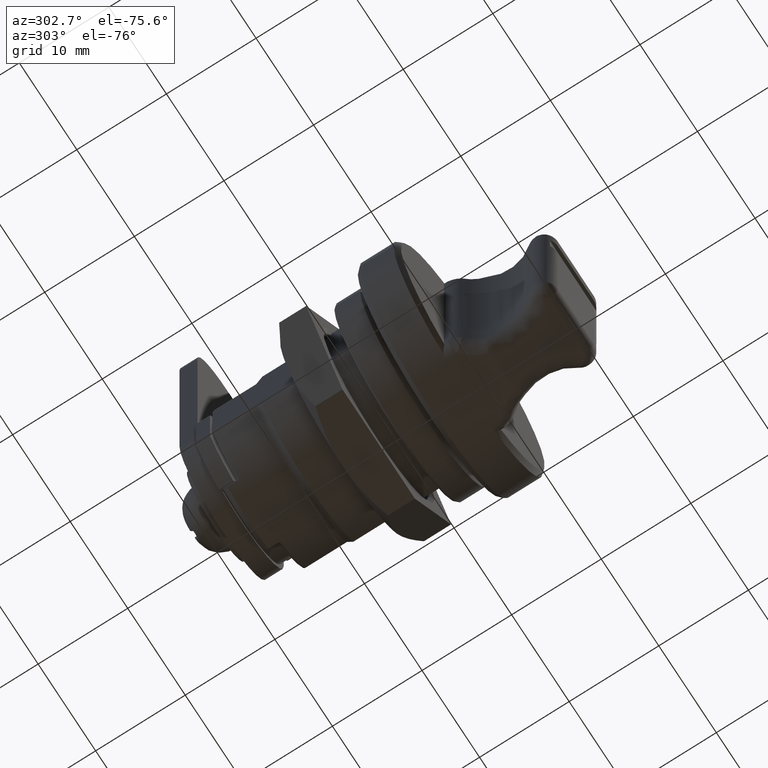
[diagram: clean part render]
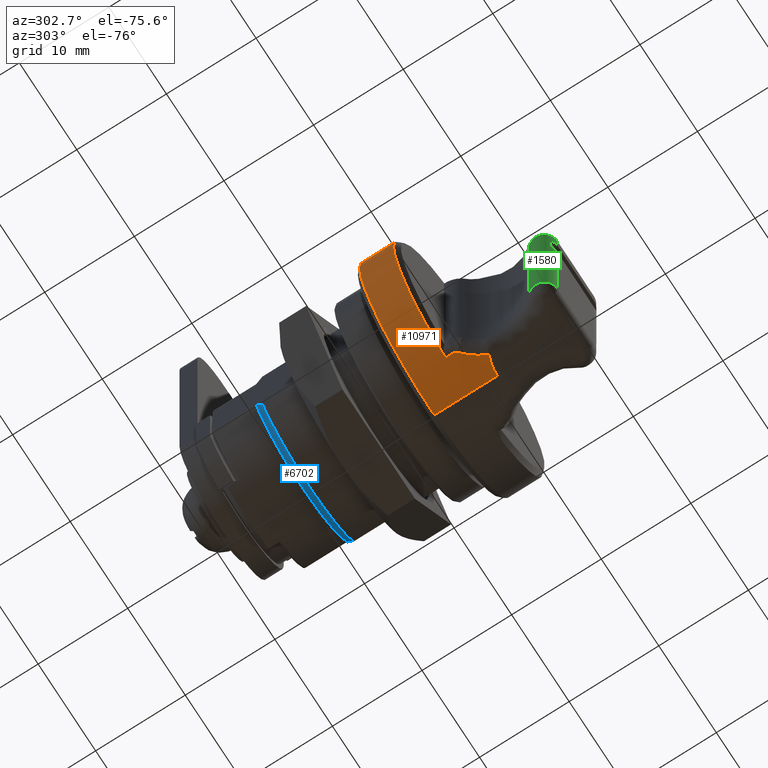
[diagram: same view with three faces highlighted in distinct colors, each labeled with its STEP entity id]
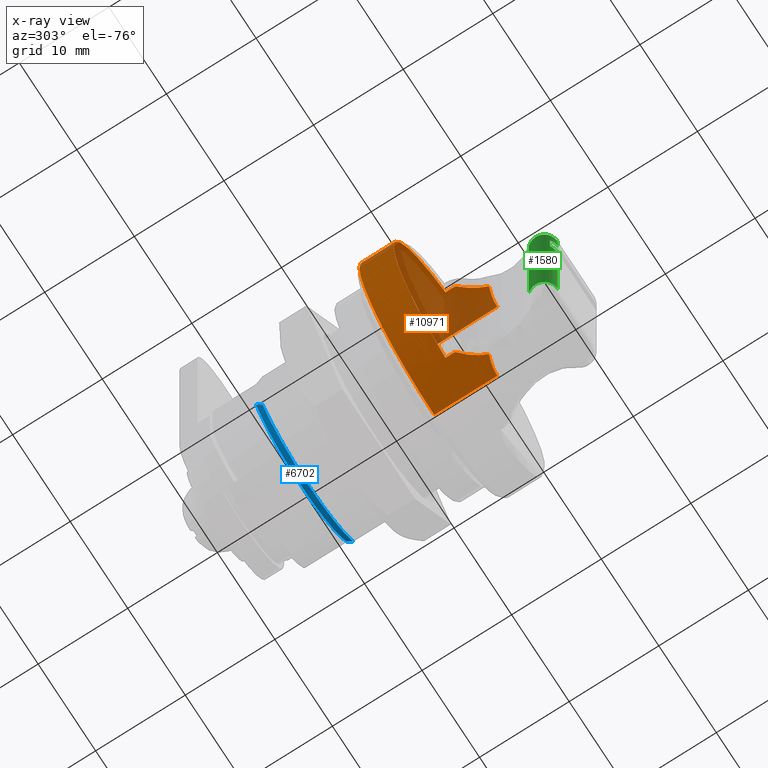
[diagram: x-ray of the same camera — body ghosted, the three highlighted faces saturated]
A machine part, auxiliary view with three faces highlighted in distinct colors.
The next image is the same camera in x-ray (body ghosted, the three faces saturated) — at least one of them is partly hidden behind the body in this view.
Their STEP definitions:

[orange] entity #10971 — the highlighted cylindrical surface (partial cylindrical patch) has radius 13 mm, axis along (0, 1, 0).
#143 = B_SPLINE_CURVE_WITH_KNOTS ( 'NONE', 3,
 ( #10987, #10151, #4213, #10186 ),
 .UNSPECIFIED., .F., .F.,
 ( 4, 4 ),
 ( 0.0000000000000000000, 1.000000000000000000 ),
 .UNSPECIFIED. ) ;
#207 = VECTOR ( 'NONE', #10780, 1000.000000000000000 ) ;
#213 = CARTESIAN_POINT ( 'NONE',  ( -8.900980486429979500, 3.956521738771737500, -12.38329260459761200 ) ) ;
#260 = ORIENTED_EDGE ( 'NONE', *, *, #10776, .T. ) ;
#346 = CARTESIAN_POINT ( 'NONE',  ( -11.39121744250004700, 1.431505148513785500, -12.94088895206948700 ) ) ;
#471 = CARTESIAN_POINT ( 'NONE',  ( 980.0000000000000000, 0.0000000000000000000, 0.0000000000000000000 ) ) ;
#501 = ORIENTED_EDGE ( 'NONE', *, *, #8183, .F. ) ;
#513 = AXIS2_PLACEMENT_3D ( 'NONE', #6466, #1382, #7341 ) ;
#641 = DIRECTION ( 'NONE',  ( 1.000000000000000000, 6.672013369132493600E-017, 6.672013369132491100E-017 ) ) ;
#661 = CARTESIAN_POINT ( 'NONE',  ( -9.240915120670015500, 3.805797101448043000, -12.43044280879360700 ) ) ;
#840 = EDGE_CURVE ( 'NONE', #5377, #5966, #6738, .T. ) ;
#854 = CARTESIAN_POINT ( 'NONE',  ( -9.871924879001865000, 3.216587939261052600, 12.59604679159770900 ) ) ;
#954 = ORIENTED_EDGE ( 'NONE', *, *, #5828, .T. ) ;
#1027 = CARTESIAN_POINT ( 'NONE',  ( -9.142548642630000400, 3.891186871440000000, 12.40400752689999900 ) ) ;
#1073 = CARTESIAN_POINT ( 'NONE',  ( -9.195828779190000200, 3.853048437650000000, -12.41597598720000000 ) ) ;
#1106 = FACE_OUTER_BOUND ( 'NONE', #7620, .T. ) ;
#1131 = ORIENTED_EDGE ( 'NONE', *, *, #3496, .F. ) ;
#1199 = LINE ( 'NONE', #7101, #9999 ) ;
#1382 = DIRECTION ( 'NONE',  ( 1.000000000000000000, -0.0000000000000000000, -0.0000000000000000000 ) ) ;
#1521 = CARTESIAN_POINT ( 'NONE',  ( -4.199999999982324500, -3.326764314864607900E-015, 2.061392367156021700E-015 ) ) ;
#1524 = LINE ( 'NONE', #7718, #10323 ) ;
#1725 = CARTESIAN_POINT ( 'NONE',  ( -10.16303911216829200, 2.989943967266768700, 12.65154595114839300 ) ) ;
#1900 = CARTESIAN_POINT ( 'NONE',  ( -8.963741932390000500, 3.956521688289999600, 12.38329262070000100 ) ) ;
#1940 = ORIENTED_EDGE ( 'NONE', *, *, #2176, .F. ) ;
#2055 = CARTESIAN_POINT ( 'NONE',  ( -11.24306071587143700, -4.897711414305082900E-007, 12.99989996156368800 ) ) ;
#2149 = CARTESIAN_POINT ( 'NONE',  ( -4.199999999982322800, 13.00000000001767800, 6.235173841678565100E-015 ) ) ;
#2167 = VERTEX_POINT ( 'NONE', #9130 ) ;
#2176 = EDGE_CURVE ( 'NONE', #7080, #5893, #6099, .T. ) ;
#2316 = AXIS2_PLACEMENT_3D ( 'NONE', #1521, #7475, #2395 ) ;
#2395 = DIRECTION ( 'NONE',  ( -6.672013369132249500E-017, 1.000000000000000000, 0.0000000000000000000 ) ) ;
#2547 = CARTESIAN_POINT ( 'NONE',  ( -11.68753051610001300, 2.139909973500710100, 12.82266685620425200 ) ) ;
#2567 = CARTESIAN_POINT ( 'NONE',  ( -10.31145743480494800, 2.883001108109514400, 12.67634224203613200 ) ) ;
#2622 = EDGE_CURVE ( 'NONE', #8223, #6995, #8588, .T. ) ;
#2698 = CARTESIAN_POINT ( 'NONE',  ( -9.195165783520000200, 3.853743312419999800, 12.41576323920000000 ) ) ;
#2723 = AXIS2_PLACEMENT_3D ( 'NONE', #5742, #641, #6611 ) ;
#3218 = CARTESIAN_POINT ( 'NONE',  ( -11.23089761100884900, 2.335817204696849700, -12.78898611520596700 ) ) ;
#3226 = CIRCLE ( 'NONE', #513, 13.00000000000000200 ) ;
#3260 = ORIENTED_EDGE ( 'NONE', *, *, #10849, .F. ) ;
#3429 = CARTESIAN_POINT ( 'NONE',  ( -11.22190051659688200, 2.324138971568306700, 12.79192181114168400 ) ) ;
#3468 = DIRECTION ( 'NONE',  ( 1.000000000000000000, -0.0000000000000000000, -0.0000000000000000000 ) ) ;
#3496 = EDGE_CURVE ( 'NONE', #5966, #6211, #10228, .T. ) ;
#3554 = ORIENTED_EDGE ( 'NONE', *, *, #5196, .T. ) ;
#3580 = AXIS2_PLACEMENT_3D ( 'NONE', #471, #4670, #4734 ) ;
#3650 = VERTEX_POINT ( 'NONE', #2055 ) ;
#3926 = VERTEX_POINT ( 'NONE', #7405 ) ;
#4043 = CARTESIAN_POINT ( 'NONE',  ( -10.79371832219517400, 2.573094227232843400, -12.74298115558164200 ) ) ;
#4213 = CARTESIAN_POINT ( 'NONE',  ( -11.24306085685711300, 0.7149269770521382600, 13.00000001947431000 ) ) ;
#4309 = ORIENTED_EDGE ( 'NONE', *, *, #9568, .F. ) ;
#4441 = CARTESIAN_POINT ( 'NONE',  ( -9.026436794820000400, 3.942984058630000500, -12.38763969070000200 ) ) ;
#4602 = B_SPLINE_CURVE_WITH_KNOTS ( 'NONE', 3,
 ( #8674, #2698, #1027, #6990, #1900, #7845 ),
 .UNSPECIFIED., .F., .F.,
 ( 4, 2, 4 ),
 ( 0.0000000000000000000, 0.5000000000013351500, 1.000000000000000000 ),
 .UNSPECIFIED. ) ;
#4622 = CIRCLE ( 'NONE', #2723, 13.00000000001815300 ) ;
#4670 = DIRECTION ( 'NONE',  ( 1.000000000000000000, -0.0000000000000000000, -0.0000000000000000000 ) ) ;
#4734 = DIRECTION ( 'NONE',  ( 0.0000000000000000000, 0.0000000000000000000, -1.000000000000000000 ) ) ;
#4847 = CARTESIAN_POINT ( 'NONE',  ( 980.0000000000000000, 1.592040838891559300E-015, 13.00000000000000200 ) ) ;
#4868 = CARTESIAN_POINT ( 'NONE',  ( -11.45622119951172400, 2.231428740947476000, -12.80739375230461300 ) ) ;
#4907 = CARTESIAN_POINT ( 'NONE',  ( -10.47377138628497100, 2.771667433158804700, -12.70129979317985700 ) ) ;
#5014 = CARTESIAN_POINT ( 'NONE',  ( -9.240915120670015500, 3.805797101448043000, 12.43044280879360700 ) ) ;
#5191 = VERTEX_POINT ( 'NONE', #8170 ) ;
#5196 = EDGE_CURVE ( 'NONE', #5377, #5191, #3226, .T. ) ;
#5315 = CARTESIAN_POINT ( 'NONE',  ( -8.964857171970001200, 3.956521725950000100, -12.38329260870000100 ) ) ;
#5377 = VERTEX_POINT ( 'NONE', #6596 ) ;
#5742 = CARTESIAN_POINT ( 'NONE',  ( -4.199999999982324500, -3.326764314864607900E-015, 2.061392367156021700E-015 ) ) ;
#5758 = CARTESIAN_POINT ( 'NONE',  ( -9.585568478527022800, 3.444593551051505600, -12.54103158235845000 ) ) ;
#5828 = EDGE_CURVE ( 'NONE', #9289, #2167, #8547, .T. ) ;
#5893 = VERTEX_POINT ( 'NONE', #2149 ) ;
#5944 = CARTESIAN_POINT ( 'NONE',  ( -9.591257991198160600, 3.456463791289386300, 12.53316356902676900 ) ) ;
#5966 = VERTEX_POINT ( 'NONE', #8210 ) ;
#6099 = CIRCLE ( 'NONE', #2316, 13.00000000001815300 ) ;
#6154 = CARTESIAN_POINT ( 'NONE',  ( -9.142716792210000800, 3.891092814680000300, -12.40403712920000100 ) ) ;
#6211 = VERTEX_POINT ( 'NONE', #6822 ) ;
#6288 = CARTESIAN_POINT ( 'NONE',  ( -11.68753051610001300, 2.139909973500710100, -12.82266685620425200 ) ) ;
#6361 = CYLINDRICAL_SURFACE ( 'NONE', #3580, 13.00000000000000200 ) ;
#6466 = CARTESIAN_POINT ( 'NONE',  ( -8.000000000000007100, 0.0000000000000000000, 0.0000000000000000000 ) ) ;
#6574 = EDGE_CURVE ( 'NONE', #6995, #3650, #143, .T. ) ;
#6596 = CARTESIAN_POINT ( 'NONE',  ( -8.000000000003574000, 3.956521737881256900, -12.38329260485784500 ) ) ;
#6604 = VERTEX_POINT ( 'NONE', #8636 ) ;
#6611 = DIRECTION ( 'NONE',  ( -6.672013369132249500E-017, 1.000000000000000000, 0.0000000000000000000 ) ) ;
#6626 = B_SPLINE_CURVE_WITH_KNOTS ( 'NONE', 3,
 ( #10858, #4868, #3218, #9187, #4043, #10028, #4907, #10896, #5758, #661 ),
 .UNSPECIFIED., .F., .F.,
 ( 4, 2, 2, 2, 4 ),
 ( 0.0000000000000000000, 0.2500000000000011700, 0.3750000000000009400, 0.5000000000000007800, 1.000000000000000000 ),
 .UNSPECIFIED. ) ;
#6638 = VECTOR ( 'NONE', #9167, 1000.000000000000000 ) ;
#6738 = LINE ( 'NONE', #9144, #207 ) ;
#6810 = CARTESIAN_POINT ( 'NONE',  ( -10.01524327872168200, 3.100397875225240400, 12.62528471764468700 ) ) ;
#6822 = CARTESIAN_POINT ( 'NONE',  ( -9.240915120670015500, 3.805797101448043000, -12.43044280879360700 ) ) ;
#6990 = CARTESIAN_POINT ( 'NONE',  ( -9.026372067740000600, 3.942993887530000600, 12.38763646530000000 ) ) ;
#6995 = VERTEX_POINT ( 'NONE', #2547 ) ;
#7034 = CARTESIAN_POINT ( 'NONE',  ( -9.240915120670015500, 3.805797101448043000, -12.43044280879360700 ) ) ;
#7080 = VERTEX_POINT ( 'NONE', #7766 ) ;
#7101 = CARTESIAN_POINT ( 'NONE',  ( 980.0000000000000000, 3.956521739118074300, 12.38329260446267600 ) ) ;
#7341 = DIRECTION ( 'NONE',  ( 0.0000000000000000000, 0.0000000000000000000, -1.000000000000000000 ) ) ;
#7356 = ORIENTED_EDGE ( 'NONE', *, *, #840, .F. ) ;
#7405 = CARTESIAN_POINT ( 'NONE',  ( -8.900980486429979500, 3.956521739125113500, 12.38329260448470700 ) ) ;
#7475 = DIRECTION ( 'NONE',  ( 1.000000000000000000, 6.672013369132493600E-017, 6.672013369132491100E-017 ) ) ;
#7620 = EDGE_LOOP ( 'NONE', ( #9794, #10261, #9364, #1940, #3260, #954, #260, #1131, #7356, #3554, #4309, #501, #9309 ) ) ;
#7682 = CARTESIAN_POINT ( 'NONE',  ( -10.26256465307209000, 2.917593597108869100, 12.66842640123561600 ) ) ;
#7718 = CARTESIAN_POINT ( 'NONE',  ( 980.0000000000000000, 0.0000000000000000000, -13.00000000000000200 ) ) ;
#7745 = EDGE_CURVE ( 'NONE', #3650, #6604, #8910, .T. ) ;
#7766 = CARTESIAN_POINT ( 'NONE',  ( -4.199999999982323700, 4.645343025862012900E-027, -13.00000000001815100 ) ) ;
#7769 = EDGE_CURVE ( 'NONE', #5893, #6604, #4622, .T. ) ;
#7845 = CARTESIAN_POINT ( 'NONE',  ( -8.900980486429979500, 3.956521739125113500, 12.38329260448470700 ) ) ;
#7993 = CARTESIAN_POINT ( 'NONE',  ( -11.24306071590350500, 2.713176968852840300E-007, -12.99989996169141900 ) ) ;
#8170 = CARTESIAN_POINT ( 'NONE',  ( -8.000000000026071600, 3.956521738413047100, 12.38329260469088500 ) ) ;
#8183 = EDGE_CURVE ( 'NONE', #8223, #3926, #4602, .T. ) ;
#8210 = CARTESIAN_POINT ( 'NONE',  ( -8.900980486429979500, 3.956521738771737500, -12.38329260459761200 ) ) ;
#8223 = VERTEX_POINT ( 'NONE', #5014 ) ;
#8541 = CARTESIAN_POINT ( 'NONE',  ( -10.78058456852518900, 2.560584244993503700, 12.74871295567005800 ) ) ;
#8547 = B_SPLINE_CURVE_WITH_KNOTS ( 'NONE', 3,
 ( #7993, #9705, #346, #6288 ),
 .UNSPECIFIED., .F., .F.,
 ( 4, 4 ),
 ( 0.0000000000000000000, 1.000000000000000000 ),
 .UNSPECIFIED. ) ;
#8588 = B_SPLINE_CURVE_WITH_KNOTS ( 'NONE', 3,
 ( #9262, #9377, #5944, #854, #6810, #1725, #7682, #2567, #8541, #3429, #9405 ),
 .UNSPECIFIED., .F., .F.,
 ( 4, 2, 1, 2, 2, 4 ),
 ( 0.0000000000000000000, 0.2499999999999998300, 0.3749999999999992800, 0.4374999999999988300, 0.4999999999999983900, 1.000000000000000000 ),
 .UNSPECIFIED. ) ;
#8636 = CARTESIAN_POINT ( 'NONE',  ( -4.199999999982325400, 1.592040838898428100E-015, 13.00000000001815400 ) ) ;
#8674 = CARTESIAN_POINT ( 'NONE',  ( -9.240915120670015500, 3.805797101448043000, 12.43044280879360700 ) ) ;
#8910 = LINE ( 'NONE', #4847, #6638 ) ;
#9130 = CARTESIAN_POINT ( 'NONE',  ( -11.68753051610001300, 2.139909973500710100, -12.82266685620425200 ) ) ;
#9144 = CARTESIAN_POINT ( 'NONE',  ( 980.0000000000000000, 3.956521737704568500, -12.38329260491429700 ) ) ;
#9167 = DIRECTION ( 'NONE',  ( 1.000000000000000000, -0.0000000000000000000, -0.0000000000000000000 ) ) ;
#9187 = CARTESIAN_POINT ( 'NONE',  ( -10.90189082038254900, 2.511400857461213200, -12.75525059339546500 ) ) ;
#9262 = CARTESIAN_POINT ( 'NONE',  ( -9.240915120670015500, 3.805797101448043000, 12.43044280879360700 ) ) ;
#9289 = VERTEX_POINT ( 'NONE', #10466 ) ;
#9309 = ORIENTED_EDGE ( 'NONE', *, *, #2622, .T. ) ;
#9364 = ORIENTED_EDGE ( 'NONE', *, *, #7769, .F. ) ;
#9377 = CARTESIAN_POINT ( 'NONE',  ( -9.412106614843486000, 3.626385022359469800, 12.48537294933835700 ) ) ;
#9405 = CARTESIAN_POINT ( 'NONE',  ( -11.68753051610001300, 2.139909973500710100, 12.82266685620425200 ) ) ;
#9568 = EDGE_CURVE ( 'NONE', #3926, #5191, #1199, .T. ) ;
#9684 = DIRECTION ( 'NONE',  ( 1.000000000000000000, -0.0000000000000000000, -0.0000000000000000000 ) ) ;
#9705 = CARTESIAN_POINT ( 'NONE',  ( -11.24306090570004100, 0.7149272133909578800, -13.00000000000000200 ) ) ;
#9794 = ORIENTED_EDGE ( 'NONE', *, *, #6574, .T. ) ;
#9999 = VECTOR ( 'NONE', #9684, 1000.000000000000000 ) ;
#10028 = CARTESIAN_POINT ( 'NONE',  ( -10.58036618986307300, 2.702742640742442400, -12.71611437710594000 ) ) ;
#10151 = CARTESIAN_POINT ( 'NONE',  ( -11.39121739365711500, 1.431505031826842300, 12.94088897154277800 ) ) ;
#10186 = CARTESIAN_POINT ( 'NONE',  ( -11.24306071587143700, -4.897711414305082900E-007, 12.99989996156368800 ) ) ;
#10228 = B_SPLINE_CURVE_WITH_KNOTS ( 'NONE', 3,
 ( #213, #5315, #4441, #6154, #1073, #7034 ),
 .UNSPECIFIED., .F., .F.,
 ( 4, 2, 4 ),
 ( 0.0000000000000000000, 0.5000000000005526700, 1.000000000000000000 ),
 .UNSPECIFIED. ) ;
#10261 = ORIENTED_EDGE ( 'NONE', *, *, #7745, .T. ) ;
#10323 = VECTOR ( 'NONE', #3468, 1000.000000000000000 ) ;
#10466 = CARTESIAN_POINT ( 'NONE',  ( -11.24306071590350500, 2.713176968852840300E-007, -12.99989996169141900 ) ) ;
#10776 = EDGE_CURVE ( 'NONE', #2167, #6211, #6626, .T. ) ;
#10780 = DIRECTION ( 'NONE',  ( -1.000000000000000000, 0.0000000000000000000, 0.0000000000000000000 ) ) ;
#10849 = EDGE_CURVE ( 'NONE', #9289, #7080, #1524, .T. ) ;
#10858 = CARTESIAN_POINT ( 'NONE',  ( -11.68753051610001300, 2.139909973500710100, -12.82266685620425200 ) ) ;
#10896 = CARTESIAN_POINT ( 'NONE',  ( -9.962431222835354200, 3.122038091810170000, -12.62281216264839200 ) ) ;
#10971 = ADVANCED_FACE ( 'NONE', ( #1106 ), #6361, .T. ) ;
#10987 = CARTESIAN_POINT ( 'NONE',  ( -11.68753051610001300, 2.139909973500710100, 12.82266685620425200 ) ) ;

[blue] entity #6702 — the highlighted conical surface has half-angle 45 deg.
#88 = B_SPLINE_CURVE_WITH_KNOTS ( 'NONE', 3,
 ( #5019, #10994, #767, #6726 ),
 .UNSPECIFIED., .F., .F.,
 ( 4, 4 ),
 ( 5.120373619252827600E-017, 0.001564807531085466500 ),
 .UNSPECIFIED. ) ;
#374 = B_SPLINE_CURVE_WITH_KNOTS ( 'NONE', 3,
 ( #10821, #4815, #6537, #1454 ),
 .UNSPECIFIED., .F., .F.,
 ( 4, 4 ),
 ( 5.480973023559017000E-016, 0.001564807531085047800 ),
 .UNSPECIFIED. ) ;
#767 = CARTESIAN_POINT ( 'NONE',  ( 10.38945910151208500, 7.900000000000000400, -4.354757281652907400 ) ) ;
#1023 = CIRCLE ( 'NONE', #2779, 8.800000000000002500 ) ;
#1147 = DIRECTION ( 'NONE',  ( 1.000000000000000000, -0.0000000000000000000, -0.0000000000000000000 ) ) ;
#1196 = CARTESIAN_POINT ( 'NONE',  ( 9.900000000000000400, 0.0000000000000000000, 0.0000000000000000000 ) ) ;
#1454 = CARTESIAN_POINT ( 'NONE',  ( 9.900000000003242200, -7.900000000000000400, -5.276362383311768800 ) ) ;
#2030 = FACE_OUTER_BOUND ( 'NONE', #6984, .T. ) ;
#2071 = DIRECTION ( 'NONE',  ( 0.0000000000000000000, -3.552713678800500900E-015, -1.000000000000000000 ) ) ;
#2332 = VERTEX_POINT ( 'NONE', #2678 ) ;
#2368 = VERTEX_POINT ( 'NONE', #5313 ) ;
#2517 = VERTEX_POINT ( 'NONE', #3146 ) ;
#2629 = AXIS2_PLACEMENT_3D ( 'NONE', #1196, #7140, #2071 ) ;
#2678 = CARTESIAN_POINT ( 'NONE',  ( 10.60000000000000000, 0.0000000000000000000, -8.800000000000002500 ) ) ;
#2694 = DIRECTION ( 'NONE',  ( 1.000000000000000000, -0.0000000000000000000, -0.0000000000000000000 ) ) ;
#2779 = AXIS2_PLACEMENT_3D ( 'NONE', #6232, #1147, #7092 ) ;
#2850 = ORIENTED_EDGE ( 'NONE', *, *, #4569, .T. ) ;
#3146 = CARTESIAN_POINT ( 'NONE',  ( 10.59999999998809500, -7.900000000000000400, -3.876854394994658600 ) ) ;
#3396 = VERTEX_POINT ( 'NONE', #9438 ) ;
#3549 = CARTESIAN_POINT ( 'NONE',  ( 10.59999999998618700, 7.900000000000000400, -3.876854394993817900 ) ) ;
#3797 = CARTESIAN_POINT ( 'NONE',  ( 10.60005672940000000, -2.536132485347489300E-012, -5.212844045310305300E-012 ) ) ;
#4274 = DIRECTION ( 'NONE',  ( -1.000000000000000000, 0.0000000000000000000, 0.0000000000000000000 ) ) ;
#4569 = EDGE_CURVE ( 'NONE', #2368, #9465, #88, .T. ) ;
#4815 = CARTESIAN_POINT ( 'NONE',  ( 10.38945910151587000, -7.900000000000000400, -4.354757281654240600 ) ) ;
#5019 = CARTESIAN_POINT ( 'NONE',  ( 9.900000000001631100, 7.900000000000000400, -5.276362383310874400 ) ) ;
#5280 = ORIENTED_EDGE ( 'NONE', *, *, #9859, .T. ) ;
#5305 = ORIENTED_EDGE ( 'NONE', *, *, #6356, .F. ) ;
#5313 = CARTESIAN_POINT ( 'NONE',  ( 9.900000000001631100, 7.900000000000000400, -5.276362383310874400 ) ) ;
#5491 = CARTESIAN_POINT ( 'NONE',  ( 9.900000000000000400, 0.0000000000000000000, -9.500000000000000000 ) ) ;
#6037 = CIRCLE ( 'NONE', #6470, 9.500000000000000000 ) ;
#6232 = CARTESIAN_POINT ( 'NONE',  ( 10.60000000000000000, 0.0000000000000000000, 0.0000000000000000000 ) ) ;
#6356 = EDGE_CURVE ( 'NONE', #2517, #2332, #9825, .T. ) ;
#6363 = DIRECTION ( 'NONE',  ( -1.000000000000000000, -0.0000000000000000000, 0.0000000000000000000 ) ) ;
#6470 = AXIS2_PLACEMENT_3D ( 'NONE', #9403, #4274, #10248 ) ;
#6537 = CARTESIAN_POINT ( 'NONE',  ( 10.15349712306948500, -7.900000000000000400, -4.819945159804120700 ) ) ;
#6702 = ADVANCED_FACE ( 'NONE', ( #2030 ), #9726, .T. ) ;
#6726 = CARTESIAN_POINT ( 'NONE',  ( 10.59999999998618700, 7.900000000000000400, -3.876854394993817900 ) ) ;
#6984 = EDGE_LOOP ( 'NONE', ( #9454, #2850, #7847, #5305, #5280, #9546 ) ) ;
#6989 = AXIS2_PLACEMENT_3D ( 'NONE', #7801, #2694, #8667 ) ;
#7092 = DIRECTION ( 'NONE',  ( 0.0000000000000000000, 0.0000000000000000000, -1.000000000000000000 ) ) ;
#7140 = DIRECTION ( 'NONE',  ( -1.000000000000000000, 0.0000000000000000000, 0.0000000000000000000 ) ) ;
#7645 = VERTEX_POINT ( 'NONE', #5491 ) ;
#7801 = CARTESIAN_POINT ( 'NONE',  ( 10.60000000000000000, 0.0000000000000000000, 0.0000000000000000000 ) ) ;
#7847 = ORIENTED_EDGE ( 'NONE', *, *, #10096, .F. ) ;
#8667 = DIRECTION ( 'NONE',  ( 0.0000000000000000000, 0.0000000000000000000, -1.000000000000000000 ) ) ;
#8994 = AXIS2_PLACEMENT_3D ( 'NONE', #3797, #6363, #9809 ) ;
#9403 = CARTESIAN_POINT ( 'NONE',  ( 9.900000000000000400, 0.0000000000000000000, 0.0000000000000000000 ) ) ;
#9438 = CARTESIAN_POINT ( 'NONE',  ( 9.900000000003242200, -7.900000000000000400, -5.276362383311768800 ) ) ;
#9454 = ORIENTED_EDGE ( 'NONE', *, *, #9601, .F. ) ;
#9465 = VERTEX_POINT ( 'NONE', #3549 ) ;
#9546 = ORIENTED_EDGE ( 'NONE', *, *, #10817, .F. ) ;
#9601 = EDGE_CURVE ( 'NONE', #2368, #7645, #10262, .T. ) ;
#9726 = CONICAL_SURFACE ( 'NONE', #8994, 8.799943270568654400, 0.7853981634226274700 ) ;
#9809 = DIRECTION ( 'NONE',  ( 0.0000000000000000000, 0.0000000000000000000, 1.000000000000000000 ) ) ;
#9825 = CIRCLE ( 'NONE', #6989, 8.800000000000002500 ) ;
#9859 = EDGE_CURVE ( 'NONE', #2517, #3396, #374, .T. ) ;
#10096 = EDGE_CURVE ( 'NONE', #2332, #9465, #1023, .T. ) ;
#10248 = DIRECTION ( 'NONE',  ( 0.0000000000000000000, 0.0000000000000000000, -1.000000000000000000 ) ) ;
#10262 = CIRCLE ( 'NONE', #2629, 9.500000000000000000 ) ;
#10817 = EDGE_CURVE ( 'NONE', #7645, #3396, #6037, .T. ) ;
#10821 = CARTESIAN_POINT ( 'NONE',  ( 10.59999999998809500, -7.900000000000000400, -3.876854394994658600 ) ) ;
#10994 = CARTESIAN_POINT ( 'NONE',  ( 10.15349712306627900, 7.900000000000000400, -4.819945159801990000 ) ) ;

[green] entity #1580 — the highlighted cylindrical surface (edge-blend (fillet) strip) has radius 1.5 mm, axis along (-0, 0, -1).
#104 = EDGE_CURVE ( 'NONE', #7089, #10739, #1827, .T. ) ;
#630 = CARTESIAN_POINT ( 'NONE',  ( -19.69999999999999900, 4.038097352628428300, 7.000000000002501100 ) ) ;
#1263 = ORIENTED_EDGE ( 'NONE', *, *, #4433, .F. ) ;
#1580 = ADVANCED_FACE ( 'NONE', ( #2008 ), #7870, .T. ) ;
#1641 = EDGE_LOOP ( 'NONE', ( #6502, #1263, #5483, #8760, #8984, #9702, #2740, #9413 ) ) ;
#1669 = DIRECTION ( 'NONE',  ( -0.0000000000000000000, 0.0000000000000000000, -1.000000000000000000 ) ) ;
#1827 = CIRCLE ( 'NONE', #10375, 1.500000000000001300 ) ;
#1915 = DIRECTION ( 'NONE',  ( -0.0000000000000000000, 0.0000000000000000000, -1.000000000000000000 ) ) ;
#2008 = FACE_OUTER_BOUND ( 'NONE', #1641, .T. ) ;
#2483 = DIRECTION ( 'NONE',  ( 0.0000000000000000000, -0.0000000000000000000, 1.000000000000000000 ) ) ;
#2545 = VERTEX_POINT ( 'NONE', #7541 ) ;
#2660 = CARTESIAN_POINT ( 'NONE',  ( -20.00000000000000000, 3.138097352631242600, 8.938727378459791600 ) ) ;
#2740 = ORIENTED_EDGE ( 'NONE', *, *, #7942, .T. ) ;
#2865 = VERTEX_POINT ( 'NONE', #5348 ) ;
#2940 = DIRECTION ( 'NONE',  ( -0.0000000000000000000, 0.0000000000000000000, -1.000000000000000000 ) ) ;
#3240 = CARTESIAN_POINT ( 'NONE',  ( -20.00000000000000000, 3.138097352630000000, 4.700000000037762900 ) ) ;
#3561 = AXIS2_PLACEMENT_3D ( 'NONE', #7580, #2483, #8439 ) ;
#3937 = CARTESIAN_POINT ( 'NONE',  ( -17.53571428570208500, 4.287076491347514600, 8.938727378466513300 ) ) ;
#4019 = CARTESIAN_POINT ( 'NONE',  ( -20.00000000000000000, 3.465526853378600300, 7.299999999995709000 ) ) ;
#4057 = VERTEX_POINT ( 'NONE', #4277 ) ;
#4155 = CARTESIAN_POINT ( 'NONE',  ( -20.00000000000000000, 3.138097352630000000, -201000.0000000000000 ) ) ;
#4174 = CARTESIAN_POINT ( 'NONE',  ( -20.00000000000000000, 3.138097352630000000, -8.938727378464792000 ) ) ;
#4194 = LINE ( 'NONE', #10911, #6451 ) ;
#4277 = CARTESIAN_POINT ( 'NONE',  ( -19.69999999999999900, 4.038097352628271100, 4.999999999997727200 ) ) ;
#4330 = EDGE_CURVE ( 'NONE', #4057, #2865, #4744, .T. ) ;
#4433 = EDGE_CURVE ( 'NONE', #4057, #9784, #8004, .T. ) ;
#4483 = VECTOR ( 'NONE', #7393, 1000.000000000000000 ) ;
#4744 = LINE ( 'NONE', #6492, #4483 ) ;
#4753 =( BOUNDED_CURVE ( )  B_SPLINE_CURVE ( 3, ( #10000, #4019, #5730, #630 ),
 .UNSPECIFIED., .F., .F. ) 
 B_SPLINE_CURVE_WITH_KNOTS ( ( 4, 4 ),
 ( 3.141592653589793100, 3.785093762380796100 ),
 .UNSPECIFIED. ) 
 CURVE ( )  GEOMETRIC_REPRESENTATION_ITEM ( )  RATIONAL_B_SPLINE_CURVE ( ( 1.000000000000000000, 0.9657888653672497300, 0.9657888653672497300, 1.000000000000000000 ) ) 
 REPRESENTATION_ITEM ( '' )  );
#4926 = DIRECTION ( 'NONE',  ( 0.0000000000000000000, -0.0000000000000000000, 1.000000000000000000 ) ) ;
#5348 = CARTESIAN_POINT ( 'NONE',  ( -19.69999999999999900, 4.038097352628428300, 7.000000000002501100 ) ) ;
#5483 = ORIENTED_EDGE ( 'NONE', *, *, #4330, .T. ) ;
#5568 = AXIS2_PLACEMENT_3D ( 'NONE', #6348, #2940, #9792 ) ;
#5730 = CARTESIAN_POINT ( 'NONE',  ( -19.89645770045061500, 3.776153752027934000, 7.196457700446178100 ) ) ;
#5747 = CARTESIAN_POINT ( 'NONE',  ( -19.89645770045065000, 3.776153752027805200, 4.803542299572863600 ) ) ;
#5769 = CARTESIAN_POINT ( 'NONE',  ( -20.00000000000000000, 3.138097352630000000, 7.299999999989510400 ) ) ;
#5994 = VERTEX_POINT ( 'NONE', #5769 ) ;
#6025 = EDGE_CURVE ( 'NONE', #2545, #10461, #10916, .T. ) ;
#6348 = CARTESIAN_POINT ( 'NONE',  ( -18.50000000000000000, 3.138097352630000000, -201000.0000000000000 ) ) ;
#6451 = VECTOR ( 'NONE', #4926, 1000.000000000000000 ) ;
#6492 = CARTESIAN_POINT ( 'NONE',  ( -19.69999999999999900, 4.038097352630000400, -201000.0000000000000 ) ) ;
#6502 = ORIENTED_EDGE ( 'NONE', *, *, #7481, .T. ) ;
#6771 = EDGE_CURVE ( 'NONE', #5994, #2865, #4753, .T. ) ;
#6976 = CARTESIAN_POINT ( 'NONE',  ( -18.50000000000000000, 3.138097352630000000, 8.938727378449584600 ) ) ;
#7089 = VERTEX_POINT ( 'NONE', #2660 ) ;
#7244 = CARTESIAN_POINT ( 'NONE',  ( -20.00000000000000000, 3.138097352630000000, 4.700000000037762900 ) ) ;
#7283 = VECTOR ( 'NONE', #1669, 1000.000000000000000 ) ;
#7393 = DIRECTION ( 'NONE',  ( 0.0000000000000000000, -0.0000000000000000000, 1.000000000000000000 ) ) ;
#7481 = EDGE_CURVE ( 'NONE', #10461, #9784, #10503, .T. ) ;
#7541 = CARTESIAN_POINT ( 'NONE',  ( -17.53571428570208100, 4.287076491347514600, -8.938727378446964500 ) ) ;
#7574 = LINE ( 'NONE', #7592, #7283 ) ;
#7580 = CARTESIAN_POINT ( 'NONE',  ( -18.50000000000000000, 3.138097352630000000, -8.938727378449584600 ) ) ;
#7592 = CARTESIAN_POINT ( 'NONE',  ( -17.53571428570189300, 4.287076491347742800, -201000.0000000000000 ) ) ;
#7641 = DIRECTION ( 'NONE',  ( 0.0000000000000000000, -0.0000000000000000000, 1.000000000000000000 ) ) ;
#7861 = DIRECTION ( 'NONE',  ( -1.000000000000000000, 0.0000000000000000000, 0.0000000000000000000 ) ) ;
#7870 = CYLINDRICAL_SURFACE ( 'NONE', #5568, 1.500000000000001300 ) ;
#7942 = EDGE_CURVE ( 'NONE', #10739, #2545, #7574, .T. ) ;
#8004 =( BOUNDED_CURVE ( )  B_SPLINE_CURVE ( 3, ( #10846, #5747, #8338, #3240 ),
 .UNSPECIFIED., .F., .F. ) 
 B_SPLINE_CURVE_WITH_KNOTS ( ( 4, 4 ),
 ( 5.639684198388716000, 6.283185307179586200 ),
 .UNSPECIFIED. ) 
 CURVE ( )  GEOMETRIC_REPRESENTATION_ITEM ( )  RATIONAL_B_SPLINE_CURVE ( ( 1.000000000000000000, 0.9657888653672636000, 0.9657888653672636000, 1.000000000000000000 ) ) 
 REPRESENTATION_ITEM ( '' )  );
#8338 = CARTESIAN_POINT ( 'NONE',  ( -20.00000000000000000, 3.465526853378530200, 4.700000000033186100 ) ) ;
#8439 = DIRECTION ( 'NONE',  ( -1.000000000000000000, 0.0000000000000000000, 0.0000000000000000000 ) ) ;
#8523 = VECTOR ( 'NONE', #7641, 1000.000000000000000 ) ;
#8760 = ORIENTED_EDGE ( 'NONE', *, *, #6771, .F. ) ;
#8984 = ORIENTED_EDGE ( 'NONE', *, *, #10259, .T. ) ;
#9413 = ORIENTED_EDGE ( 'NONE', *, *, #6025, .T. ) ;
#9702 = ORIENTED_EDGE ( 'NONE', *, *, #104, .T. ) ;
#9784 = VERTEX_POINT ( 'NONE', #7244 ) ;
#9792 = DIRECTION ( 'NONE',  ( -1.000000000000000000, 0.0000000000000000000, 0.0000000000000000000 ) ) ;
#10000 = CARTESIAN_POINT ( 'NONE',  ( -20.00000000000000000, 3.138097352630000000, 7.299999999989510400 ) ) ;
#10259 = EDGE_CURVE ( 'NONE', #5994, #7089, #4194, .T. ) ;
#10375 = AXIS2_PLACEMENT_3D ( 'NONE', #6976, #1915, #7861 ) ;
#10461 = VERTEX_POINT ( 'NONE', #4174 ) ;
#10503 = LINE ( 'NONE', #4155, #8523 ) ;
#10739 = VERTEX_POINT ( 'NONE', #3937 ) ;
#10846 = CARTESIAN_POINT ( 'NONE',  ( -19.69999999999999900, 4.038097352628271100, 4.999999999997727200 ) ) ;
#10911 = CARTESIAN_POINT ( 'NONE',  ( -20.00000000000000000, 3.138097352630000000, -201000.0000000000000 ) ) ;
#10916 = CIRCLE ( 'NONE', #3561, 1.500000000000001300 ) ;